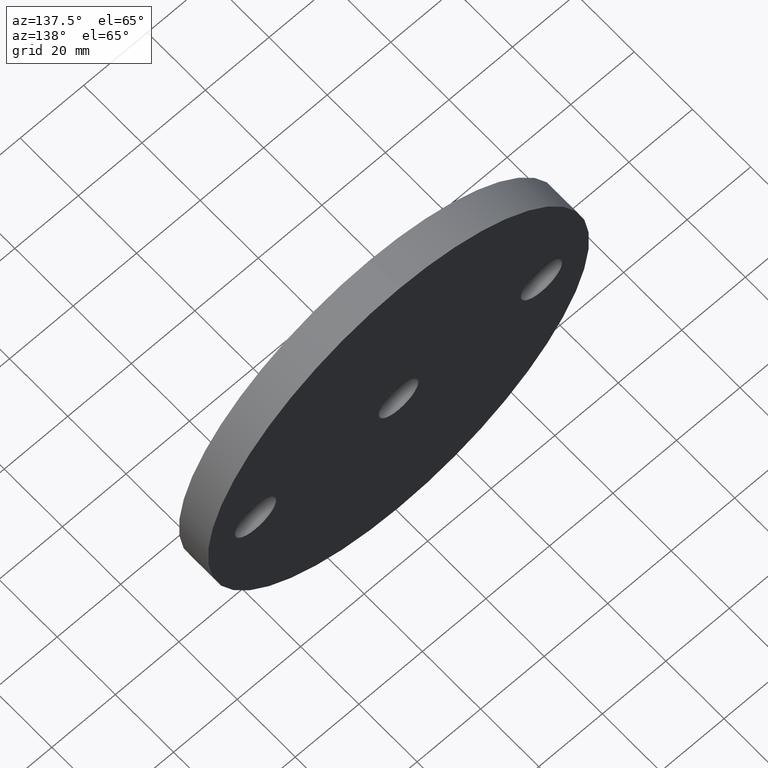
[diagram: clean part render]
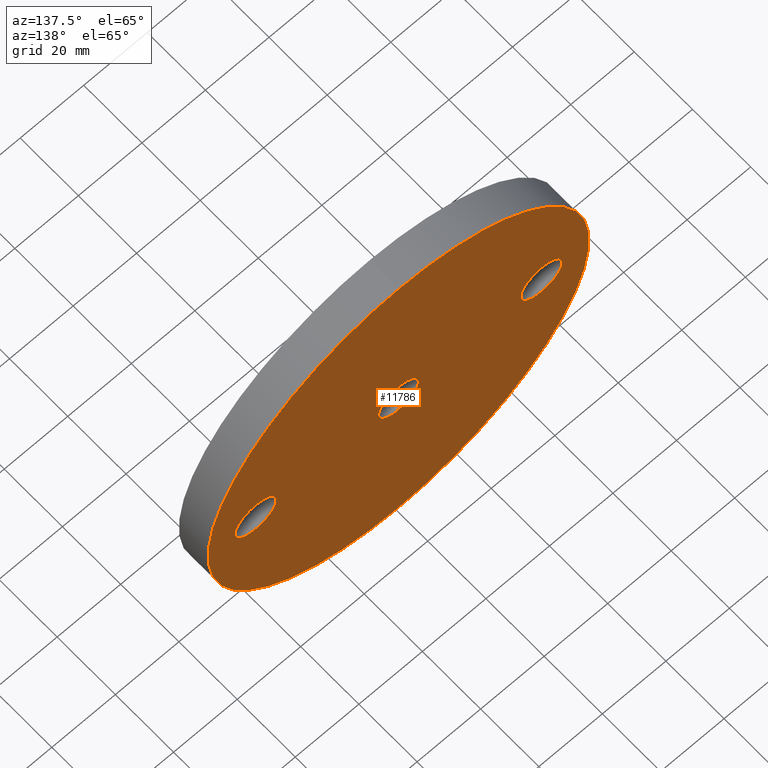
[diagram: same view with one face highlighted and labeled with its STEP entity id]
A machine part, auxiliary view. The second image highlights one B-rep face of the part: STEP entity #11786.
In plain terms, the highlighted planar face has unit normal (0, 1, 0).
Its self-contained STEP definition (entity closure, byte-faithful):
#174 = AXIS2_PLACEMENT_3D ( 'NONE', #816, #9688, #6706 ) ;
#183 = CARTESIAN_POINT ( 'NONE',  ( 0.0000000000000000000, 10.00000000000000000, 0.0000000000000000000 ) ) ;
#199 = CIRCLE ( 'NONE', #174, 60.00000000000000000 ) ;
#425 = DIRECTION ( 'NONE',  ( 0.0000000000000000000, 1.000000000000000000, 0.0000000000000000000 ) ) ;
#433 = ORIENTED_EDGE ( 'NONE', *, *, #11888, .F. ) ;
#689 = AXIS2_PLACEMENT_3D ( 'NONE', #11815, #6906, #5960 ) ;
#748 = FACE_BOUND ( 'NONE', #9117, .T. ) ;
#783 = AXIS2_PLACEMENT_3D ( 'NONE', #12606, #1841, #8680 ) ;
#816 = CARTESIAN_POINT ( 'NONE',  ( 0.0000000000000000000, 10.00000000000000000, 0.0000000000000000000 ) ) ;
#862 = VERTEX_POINT ( 'NONE', #7380 ) ;
#1605 = EDGE_CURVE ( 'NONE', #6428, #9989, #10742, .T. ) ;
#1650 = DIRECTION ( 'NONE',  ( 0.0000000000000000000, 0.0000000000000000000, 1.000000000000000000 ) ) ;
#1707 = ORIENTED_EDGE ( 'NONE', *, *, #2314, .T. ) ;
#1841 = DIRECTION ( 'NONE',  ( 0.0000000000000000000, 1.000000000000000000, 0.0000000000000000000 ) ) ;
#2314 = EDGE_CURVE ( 'NONE', #7247, #8776, #199, .T. ) ;
#2409 = DIRECTION ( 'NONE',  ( 0.0000000000000000000, 0.0000000000000000000, 1.000000000000000000 ) ) ;
#3496 = EDGE_CURVE ( 'NONE', #8776, #7247, #4323, .T. ) ;
#3933 = AXIS2_PLACEMENT_3D ( 'NONE', #9542, #11555, #6768 ) ;
#4323 = CIRCLE ( 'NONE', #3933, 60.00000000000000000 ) ;
#4909 = AXIS2_PLACEMENT_3D ( 'NONE', #10503, #10585, #12468 ) ;
#5188 = VERTEX_POINT ( 'NONE', #5738 ) ;
#5354 = CARTESIAN_POINT ( 'NONE',  ( 0.0000000000000000000, 10.00000000000000000, 6.250000000000000000 ) ) ;
#5374 = CARTESIAN_POINT ( 'NONE',  ( 7.654042494670957600E-016, 10.00000000000000000, -6.250000000000000000 ) ) ;
#5449 = CARTESIAN_POINT ( 'NONE',  ( -45.00000000000000000, 10.00000000000000000, -6.500000000000000900 ) ) ;
#5738 = CARTESIAN_POINT ( 'NONE',  ( 45.00000000000000000, 10.00000000000000000, 6.499999999999989300 ) ) ;
#5960 = DIRECTION ( 'NONE',  ( 0.0000000000000000000, 0.0000000000000000000, 1.000000000000000000 ) ) ;
#6428 = VERTEX_POINT ( 'NONE', #5354 ) ;
#6706 = DIRECTION ( 'NONE',  ( 0.0000000000000000000, 0.0000000000000000000, 1.000000000000000000 ) ) ;
#6768 = DIRECTION ( 'NONE',  ( 0.0000000000000000000, 0.0000000000000000000, 1.000000000000000000 ) ) ;
#6795 = DIRECTION ( 'NONE',  ( 0.0000000000000000000, 0.0000000000000000000, 1.000000000000000000 ) ) ;
#6906 = DIRECTION ( 'NONE',  ( 0.0000000000000000000, 1.000000000000000000, 0.0000000000000000000 ) ) ;
#7002 = CIRCLE ( 'NONE', #8639, 6.500000000000000900 ) ;
#7085 = CARTESIAN_POINT ( 'NONE',  ( 45.00000000000000000, 10.00000000000000000, -1.102182119232617900E-014 ) ) ;
#7111 = EDGE_CURVE ( 'NONE', #9989, #6428, #10364, .T. ) ;
#7247 = VERTEX_POINT ( 'NONE', #7934 ) ;
#7340 = CARTESIAN_POINT ( 'NONE',  ( 45.00000000000000000, 10.00000000000000000, -1.102182119232617900E-014 ) ) ;
#7380 = CARTESIAN_POINT ( 'NONE',  ( 45.00000000000000000, 10.00000000000000000, -6.500000000000011500 ) ) ;
#7461 = DIRECTION ( 'NONE',  ( 0.0000000000000000000, 1.000000000000000000, 0.0000000000000000000 ) ) ;
#7502 = ORIENTED_EDGE ( 'NONE', *, *, #1605, .F. ) ;
#7553 = AXIS2_PLACEMENT_3D ( 'NONE', #183, #9962, #8842 ) ;
#7563 = ORIENTED_EDGE ( 'NONE', *, *, #9576, .F. ) ;
#7718 = ORIENTED_EDGE ( 'NONE', *, *, #8766, .F. ) ;
#7934 = CARTESIAN_POINT ( 'NONE',  ( 7.347880794884118400E-015, 10.00000000000000000, 60.00000000000000000 ) ) ;
#8513 = CIRCLE ( 'NONE', #689, 6.500000000000000900 ) ;
#8538 = ORIENTED_EDGE ( 'NONE', *, *, #7111, .F. ) ;
#8639 = AXIS2_PLACEMENT_3D ( 'NONE', #11622, #9651, #6795 ) ;
#8680 = DIRECTION ( 'NONE',  ( 0.0000000000000000000, -0.0000000000000000000, 1.000000000000000000 ) ) ;
#8766 = EDGE_CURVE ( 'NONE', #862, #5188, #10047, .T. ) ;
#8776 = VERTEX_POINT ( 'NONE', #9173 ) ;
#8816 = ORIENTED_EDGE ( 'NONE', *, *, #3496, .T. ) ;
#8842 = DIRECTION ( 'NONE',  ( 0.0000000000000000000, 0.0000000000000000000, 1.000000000000000000 ) ) ;
#9117 = EDGE_LOOP ( 'NONE', ( #7563, #7718 ) ) ;
#9148 = FACE_OUTER_BOUND ( 'NONE', #10902, .T. ) ;
#9173 = CARTESIAN_POINT ( 'NONE',  ( 0.0000000000000000000, 10.00000000000000000, -60.00000000000000000 ) ) ;
#9463 = EDGE_CURVE ( 'NONE', #12172, #12273, #8513, .T. ) ;
#9495 = EDGE_LOOP ( 'NONE', ( #7502, #8538 ) ) ;
#9542 = CARTESIAN_POINT ( 'NONE',  ( 0.0000000000000000000, 10.00000000000000000, 0.0000000000000000000 ) ) ;
#9576 = EDGE_CURVE ( 'NONE', #5188, #862, #10474, .T. ) ;
#9592 = AXIS2_PLACEMENT_3D ( 'NONE', #7085, #425, #2409 ) ;
#9626 = ORIENTED_EDGE ( 'NONE', *, *, #9463, .F. ) ;
#9651 = DIRECTION ( 'NONE',  ( 0.0000000000000000000, 1.000000000000000000, 0.0000000000000000000 ) ) ;
#9688 = DIRECTION ( 'NONE',  ( 0.0000000000000000000, 1.000000000000000000, 0.0000000000000000000 ) ) ;
#9962 = DIRECTION ( 'NONE',  ( 0.0000000000000000000, 1.000000000000000000, 0.0000000000000000000 ) ) ;
#9989 = VERTEX_POINT ( 'NONE', #5374 ) ;
#10047 = CIRCLE ( 'NONE', #9592, 6.500000000000000900 ) ;
#10364 = CIRCLE ( 'NONE', #7553, 6.250000000000000000 ) ;
#10456 = CARTESIAN_POINT ( 'NONE',  ( -45.00000000000000000, 10.00000000000000000, 6.500000000000000900 ) ) ;
#10474 = CIRCLE ( 'NONE', #12227, 6.500000000000000900 ) ;
#10503 = CARTESIAN_POINT ( 'NONE',  ( 0.0000000000000000000, 10.00000000000000000, 0.0000000000000000000 ) ) ;
#10585 = DIRECTION ( 'NONE',  ( 0.0000000000000000000, 1.000000000000000000, 0.0000000000000000000 ) ) ;
#10742 = CIRCLE ( 'NONE', #4909, 6.250000000000000000 ) ;
#10902 = EDGE_LOOP ( 'NONE', ( #8816, #1707 ) ) ;
#11555 = DIRECTION ( 'NONE',  ( 0.0000000000000000000, 1.000000000000000000, 0.0000000000000000000 ) ) ;
#11581 = PLANE ( 'NONE',  #783 ) ;
#11590 = FACE_BOUND ( 'NONE', #12075, .T. ) ;
#11622 = CARTESIAN_POINT ( 'NONE',  ( -45.00000000000000000, 10.00000000000000000, 0.0000000000000000000 ) ) ;
#11786 = ADVANCED_FACE ( 'NONE', ( #11898, #748, #11590, #9148 ), #11581, .T. ) ;
#11815 = CARTESIAN_POINT ( 'NONE',  ( -45.00000000000000000, 10.00000000000000000, 0.0000000000000000000 ) ) ;
#11888 = EDGE_CURVE ( 'NONE', #12273, #12172, #7002, .T. ) ;
#11898 = FACE_BOUND ( 'NONE', #9495, .T. ) ;
#12075 = EDGE_LOOP ( 'NONE', ( #433, #9626 ) ) ;
#12172 = VERTEX_POINT ( 'NONE', #5449 ) ;
#12227 = AXIS2_PLACEMENT_3D ( 'NONE', #7340, #7461, #1650 ) ;
#12273 = VERTEX_POINT ( 'NONE', #10456 ) ;
#12468 = DIRECTION ( 'NONE',  ( 0.0000000000000000000, 0.0000000000000000000, 1.000000000000000000 ) ) ;
#12606 = CARTESIAN_POINT ( 'NONE',  ( 0.0000000000000000000, 10.00000000000000000, 0.0000000000000000000 ) ) ;